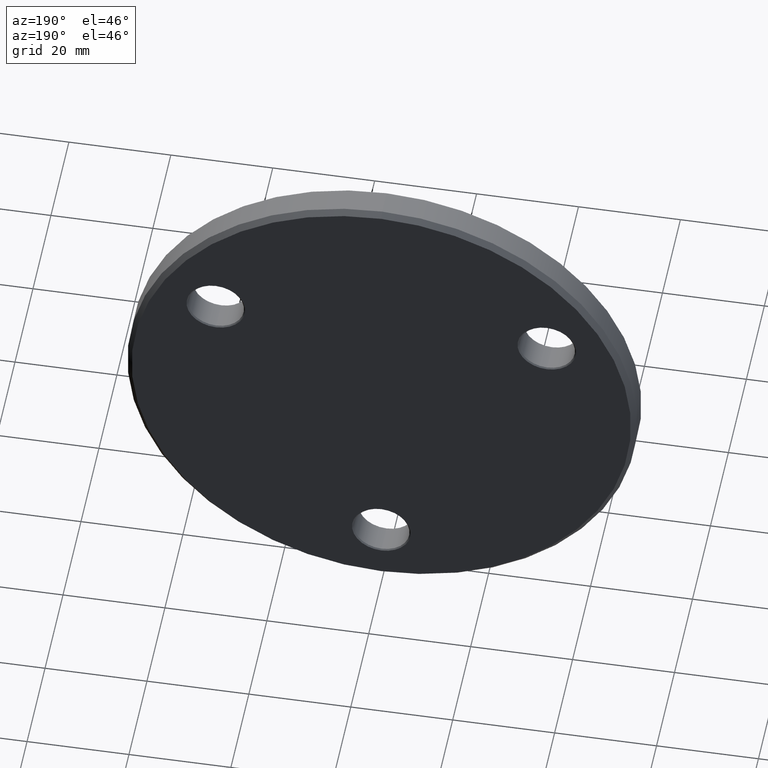
[diagram: clean part render]
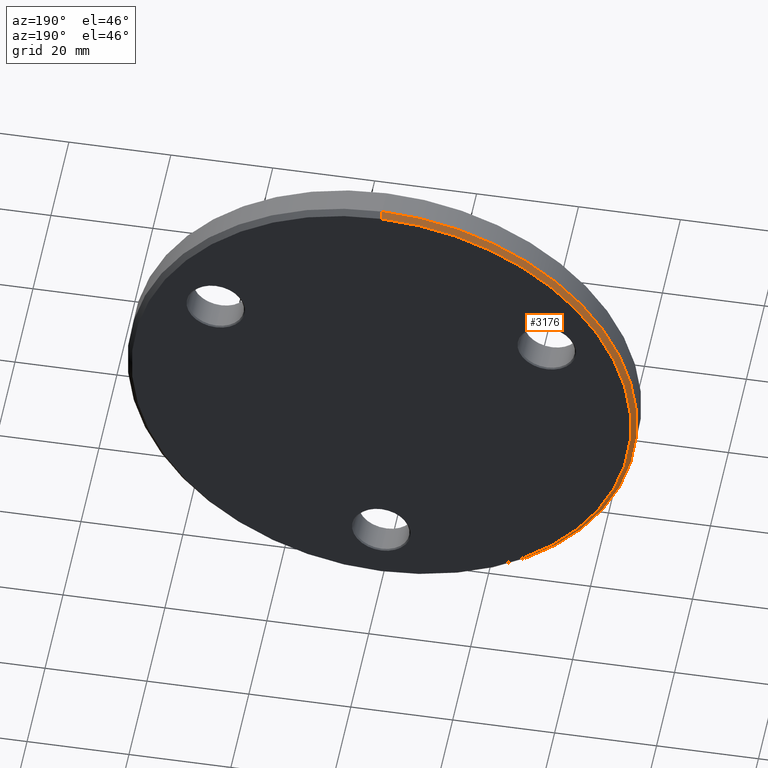
[diagram: same view with one face highlighted and labeled with its STEP entity id]
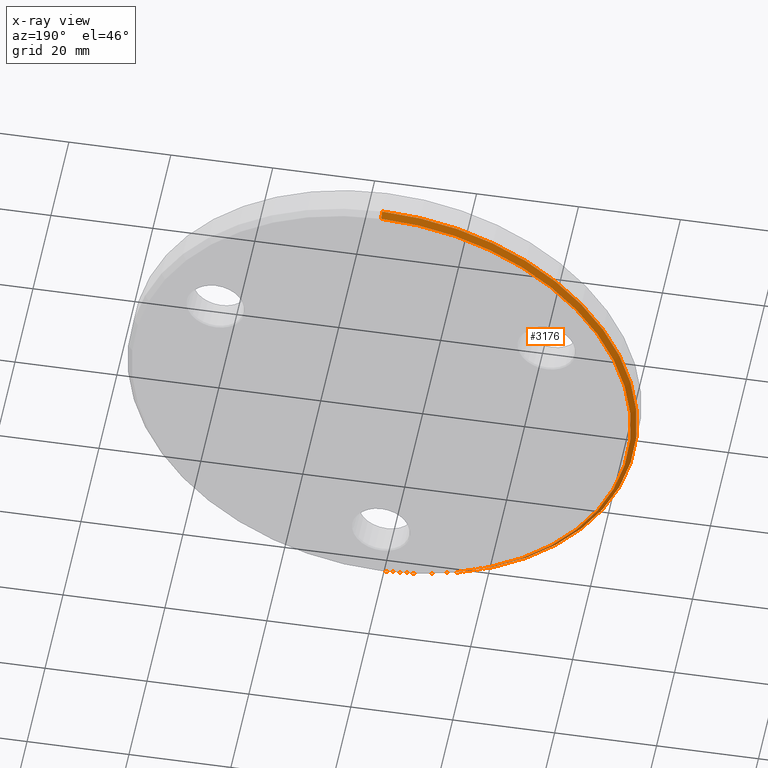
[diagram: x-ray of the same camera — body ghosted, the highlighted face saturated]
A machine part, auxiliary view. The second image highlights one B-rep face of the part: STEP entity #3176.
The next image is the same camera in x-ray: the body ghosted, the highlighted face saturated — about 0% of this face is hidden behind the body in this view.
In plain terms, the highlighted conical surface has half-angle 45 deg.
Its self-contained STEP definition (entity closure, byte-faithful):
#159 = CARTESIAN_POINT ( 'NONE',  ( 0.000000000000000000, 4.999999999999999112, -50.00000000000000000 ) ) ;
#471 = AXIS2_PLACEMENT_3D ( 'NONE', #3403, #12776, #521 ) ;
#521 = DIRECTION ( 'NONE',  ( 0.000000000000000000, 0.000000000000000000, 1.000000000000000000 ) ) ;
#1145 = CARTESIAN_POINT ( 'NONE',  ( 0.000000000000000000, 6.000000000000000000, -49.00000000000002132 ) ) ;
#1471 = CIRCLE ( 'NONE', #471, 50.00000000000000000 ) ;
#2540 = ORIENTED_EDGE ( 'NONE', *, *, #5257, .T. ) ;
#2755 = CARTESIAN_POINT ( 'NONE',  ( 6.062001655779400089E-15, 6.000000000000000000, 49.00000000000002132 ) ) ;
#2814 = DIRECTION ( 'NONE',  ( 0.000000000000000000, -0.7071067811865549002, -0.7071067811865401342 ) ) ;
#2939 = CIRCLE ( 'NONE', #10092, 49.00000000000002132 ) ;
#2954 = VERTEX_POINT ( 'NONE', #159 ) ;
#3003 = VERTEX_POINT ( 'NONE', #1145 ) ;
#3143 = EDGE_LOOP ( 'NONE', ( #6770, #12152, #2540, #6723 ) ) ;
#3176 = ADVANCED_FACE ( 'NONE', ( #11300 ), #6125, .T. ) ;
#3250 = CARTESIAN_POINT ( 'NONE',  ( 0.000000000000000000, 6.000000000000000000, 0.000000000000000000 ) ) ;
#3269 = VERTEX_POINT ( 'NONE', #2755 ) ;
#3403 = CARTESIAN_POINT ( 'NONE',  ( 0.000000000000000000, 4.999999999999999112, 0.000000000000000000 ) ) ;
#5257 = EDGE_CURVE ( 'NONE', #3003, #2954, #11255, .T. ) ;
#6125 = CONICAL_SURFACE ( 'NONE', #7143, 49.00000000000002132, 0.7853981633974378429 ) ;
#6518 = DIRECTION ( 'NONE',  ( 0.000000000000000000, -1.000000000000000000, 0.000000000000000000 ) ) ;
#6723 = ORIENTED_EDGE ( 'NONE', *, *, #10686, .F. ) ;
#6770 = ORIENTED_EDGE ( 'NONE', *, *, #9717, .F. ) ;
#6975 = LINE ( 'NONE', #10127, #13257 ) ;
#7143 = AXIS2_PLACEMENT_3D ( 'NONE', #7722, #6518, #9214 ) ;
#7318 = DIRECTION ( 'NONE',  ( 0.000000000000000000, 0.000000000000000000, 1.000000000000000000 ) ) ;
#7532 = EDGE_CURVE ( 'NONE', #3003, #3269, #2939, .T. ) ;
#7722 = CARTESIAN_POINT ( 'NONE',  ( 0.000000000000000000, 6.000000000000000000, 0.000000000000000000 ) ) ;
#8713 = VERTEX_POINT ( 'NONE', #13005 ) ;
#9214 = DIRECTION ( 'NONE',  ( 0.000000000000000000, 0.000000000000000000, -1.000000000000000000 ) ) ;
#9279 = DIRECTION ( 'NONE',  ( 0.000000000000000000, 1.000000000000000000, 0.000000000000000000 ) ) ;
#9291 = VECTOR ( 'NONE', #2814, 1000.000000000000000 ) ;
#9717 = EDGE_CURVE ( 'NONE', #3269, #8713, #6975, .T. ) ;
#10092 = AXIS2_PLACEMENT_3D ( 'NONE', #3250, #9279, #7318 ) ;
#10127 = CARTESIAN_POINT ( 'NONE',  ( 6.000769315822033304E-15, 6.000000000000000000, 49.00000000000002132 ) ) ;
#10686 = EDGE_CURVE ( 'NONE', #8713, #2954, #1471, .T. ) ;
#11255 = LINE ( 'NONE', #12131, #9291 ) ;
#11300 = FACE_OUTER_BOUND ( 'NONE', #3143, .T. ) ;
#12131 = CARTESIAN_POINT ( 'NONE',  ( 0.000000000000000000, 6.000000000000000000, -49.00000000000002132 ) ) ;
#12152 = ORIENTED_EDGE ( 'NONE', *, *, #7532, .F. ) ;
#12776 = DIRECTION ( 'NONE',  ( 0.000000000000000000, -1.000000000000000000, 0.000000000000000000 ) ) ;
#13005 = CARTESIAN_POINT ( 'NONE',  ( 6.123233995736766085E-15, 4.999999999999999112, 50.00000000000000000 ) ) ;
#13257 = VECTOR ( 'NONE', #13338, 1000.000000000000000 ) ;
#13338 = DIRECTION ( 'NONE',  ( 8.659560562354844111E-17, -0.7071067811865549002, 0.7071067811865401342 ) ) ;